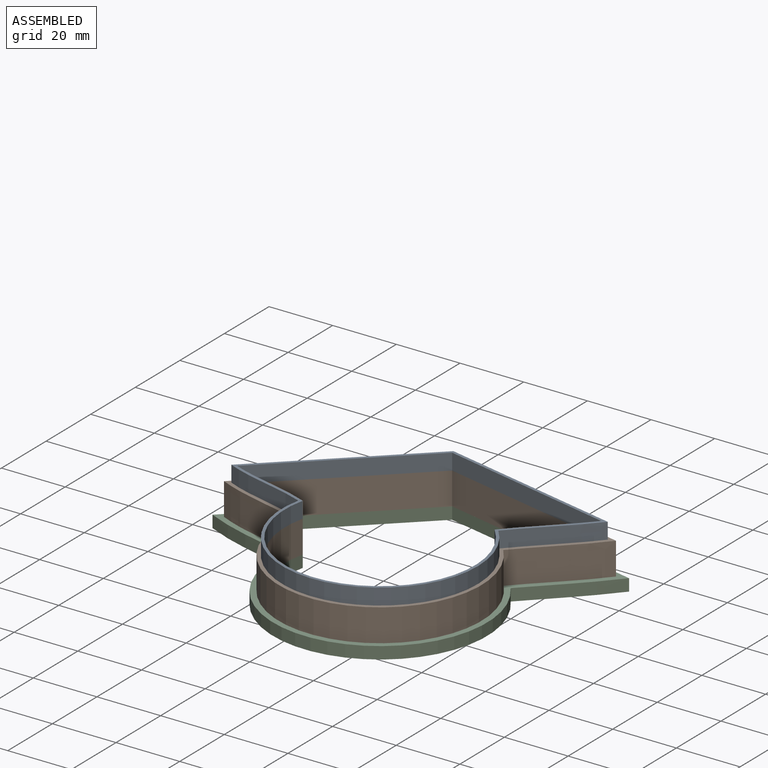
[diagram: assembled view]
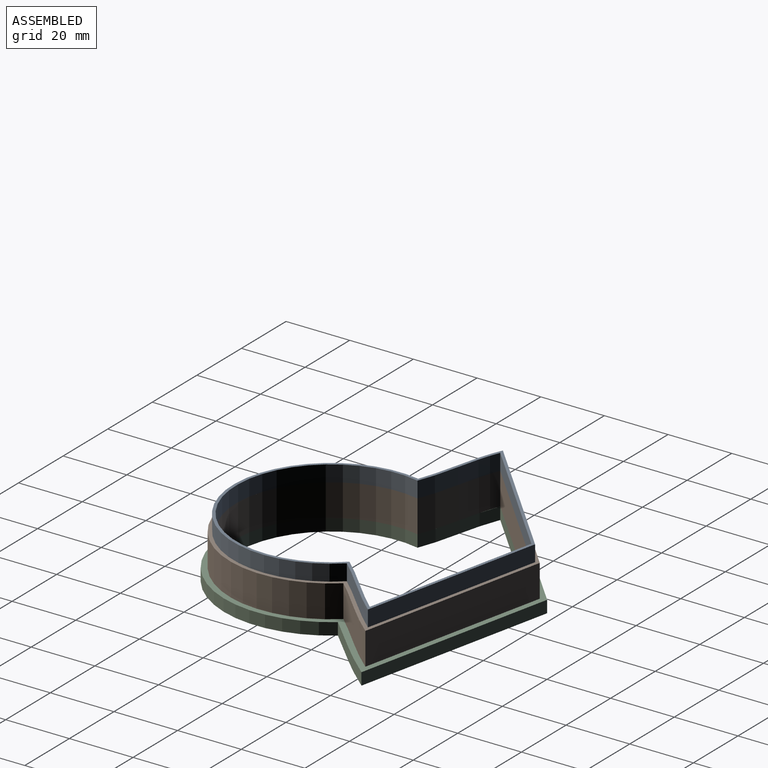
[diagram: assembled view, second angle]
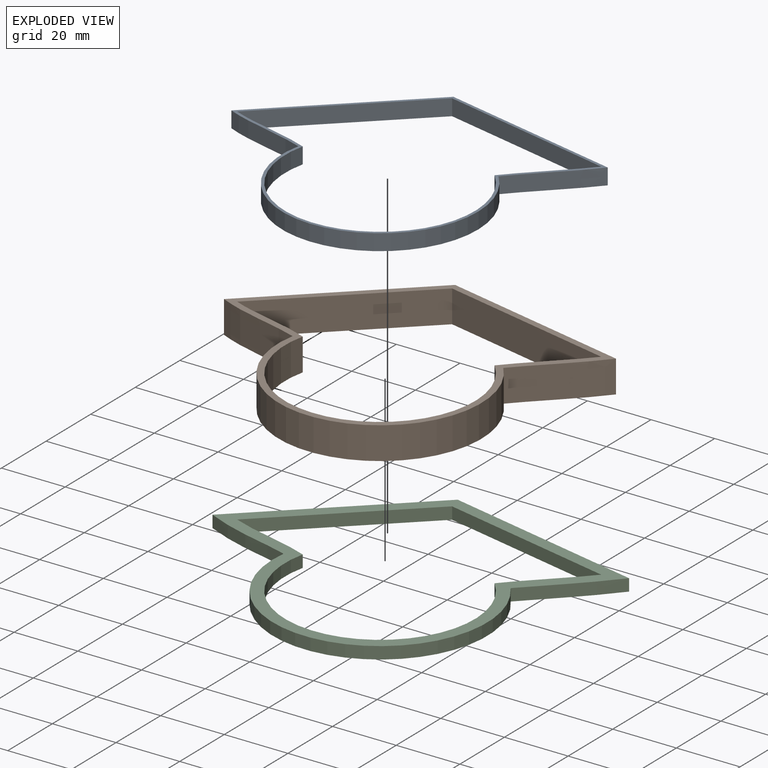
[diagram: exploded view]
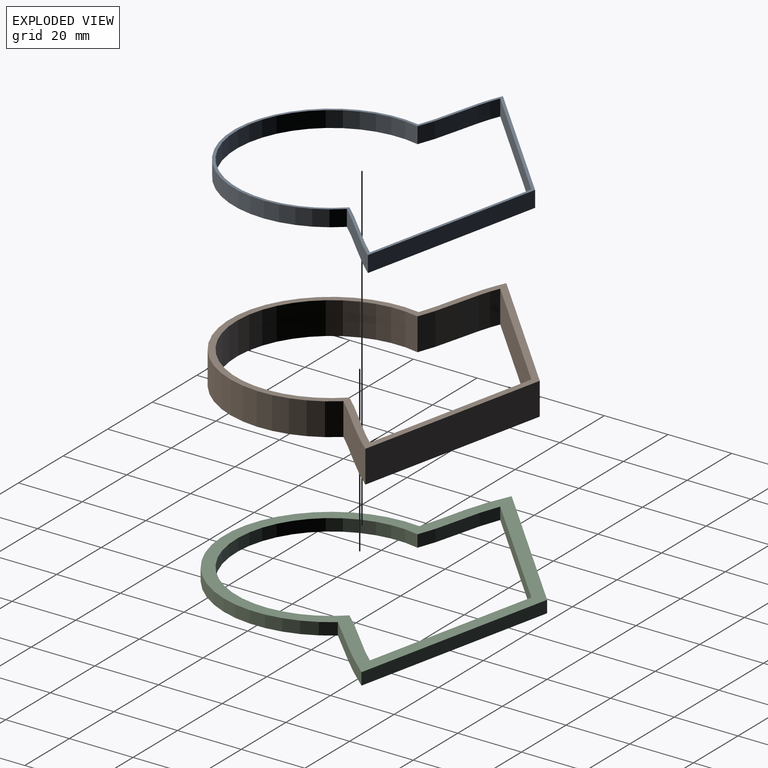
[diagram: exploded view, second angle]
ASSEMBLY  parts=3 mates=2
PART A: 12 faces, bbox 100x85.2x5.8 mm
  f0: plane 100x85.22mm, normal (0,0,1), area 261.9mm2, adj f2,f3,f4,f5,f6,f7,f8,f9
  f1: plane 100x85.22mm, normal (0,0,-1), area 261.9mm2, adj f2,f3,f4,f5,f6,f7,f8,f9
  f2: extruded ~42.05x39.55mm, area 293.2mm2, adj f0,f1,f3,f6
  f3: extruded ~26.61x8mm, area 141.4mm2, adj f0,f1,f2,f4
  f4: cylinder r=30.7mm len=61.4mm, axis (0,0,-1), area 637.4mm2, adj f0,f1,f3,f5
  f5: extruded ~20.56x19.93mm, area 145.5mm2, adj f0,f1,f4,f6
  f6: extruded ~57.2x12.48mm, area 297.4mm2, adj f0,f1,f2,f5
  f7: extruded ~40.71x38.3mm, area 283.9mm2, adj f0,f1,f8,f11
  f8: extruded ~26.04x7.75mm, area 138.2mm2, adj f0,f1,f7,f9
  f9: cylinder r=29.81mm len=59.62mm, axis (0,0,-1), area 626.7mm2, adj f0,f1,f8,f10
  f10: extruded ~20.03x19.48mm, area 142mm2, adj f0,f1,f9,f11
  f11: extruded ~55.27x12.06mm, area 287.4mm2, adj f0,f1,f7,f10
PART B: 12 faces, bbox 104.3x87.8x11.1 mm
  f0: plane 104.34x87.76mm, normal (0,0,1), area 608.1mm2, adj f2,f3,f4,f5,f6,f7,f8,f9
  f1: plane 104.34x87.76mm, normal (0,0,-1), area 608.1mm2, adj f2,f3,f4,f5,f6,f7,f8,f9
  f2: extruded ~43.77x41.16mm, area 610.4mm2, adj f0,f1,f3,f6
  f3: extruded ~27.37x10.16mm, area 291.1mm2, adj f0,f1,f2,f4
  f4: cylinder r=31.84mm len=63.69mm, axis (0,0,-1), area 1301.9mm2, adj f0,f1,f3,f5
  f5: extruded ~21.27x20.53mm, area 300.4mm2, adj f0,f1,f4,f6
  f6: extruded ~59.67x13.02mm, area 620.5mm2, adj f0,f1,f2,f5
  f7: extruded ~40.71x38.3mm, area 567.9mm2, adj f0,f1,f8,f11
  f8: extruded ~26.04x10.16mm, area 276.3mm2, adj f0,f1,f7,f9
  f9: cylinder r=29.81mm len=59.62mm, axis (0,0,-1), area 1253.5mm2, adj f0,f1,f8,f10
  f10: extruded ~20.03x19.48mm, area 283.9mm2, adj f0,f1,f9,f11
  f11: extruded ~55.27x12.06mm, area 574.8mm2, adj f0,f1,f7,f10
PART C: 12 faces, bbox 111.1x91.7x4.9 mm
  f0: plane 111.07x91.68mm, normal (0,0,1), area 1167.8mm2, adj f2,f3,f4,f5,f6,f7,f8,f9
  f1: plane 111.07x91.68mm, normal (0,0,-1), area 1167.8mm2, adj f2,f3,f4,f5,f6,f7,f8,f9
  f2: extruded ~46.44x43.67mm, area 242.9mm2, adj f0,f1,f3,f6
  f3: extruded ~28.6x8.97mm, area 114.7mm2, adj f0,f1,f2,f4
  f4: cylinder r=33.62mm len=67.24mm, axis (0,0,-1), area 503.7mm2, adj f0,f1,f3,f5
  f5: extruded ~22.44x21.49mm, area 118.6mm2, adj f0,f1,f4,f6
  f6: extruded ~63.52x13.86mm, area 247.7mm2, adj f0,f1,f2,f5
  f7: extruded ~40.71x38.3mm, area 213mm2, adj f0,f1,f8,f11
  f8: extruded ~26.04x7.75mm, area 103.6mm2, adj f0,f1,f7,f9
  f9: cylinder r=29.81mm len=59.62mm, axis (0,0,-1), area 470.1mm2, adj f0,f1,f8,f10
  f10: extruded ~20.03x19.48mm, area 106.5mm2, adj f0,f1,f9,f11
  f11: extruded ~55.27x12.06mm, area 215.5mm2, adj f0,f1,f7,f10
PLACE A t=(89.49,4.94,13.97)mm
PLACE B t=(224.29,-14.99,3.81)mm
PLACE C at identity
MATE fastened A.f1 <-> B.f0  axis (0,0,1) through (69.86,-1.75,13.97)mm
MATE fastened B.f1 <-> C.f0  axis (0,0,-1) through (69.86,-1.75,3.81)mm
